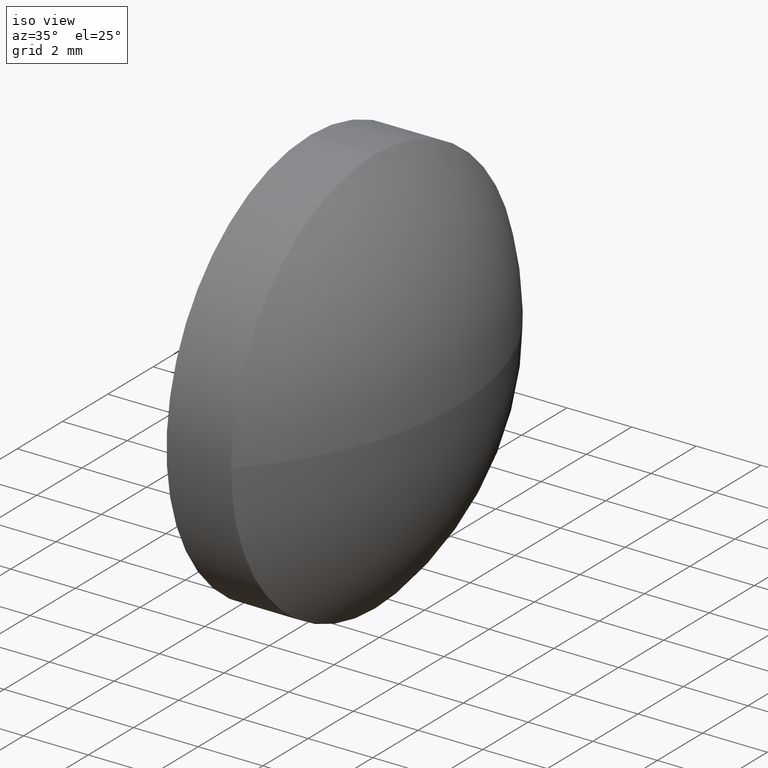
[diagram: clean part render]
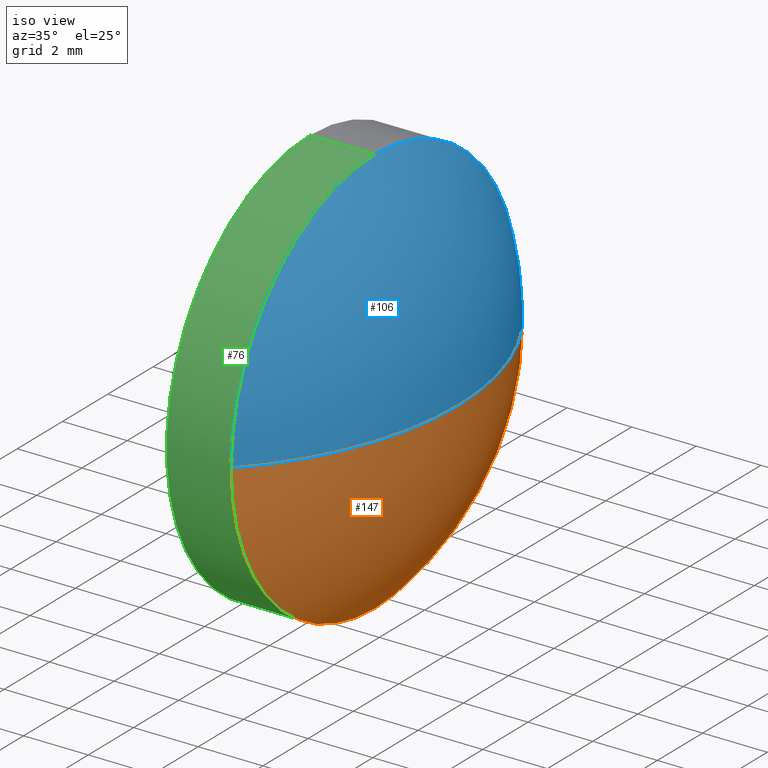
[diagram: same view with three faces highlighted in distinct colors, each labeled with its STEP entity id]
A machine part, iso view with three faces highlighted in distinct colors.
Their STEP definitions:

[orange] entity #147 — the highlighted spherical surface has radius 9.1555 mm.
#3 = CIRCLE ( 'NONE', #101, 9.155488281250011800 ) ;
#7 = DIRECTION ( 'NONE',  ( -1.000000000000000000, 0.0000000000000000000, 0.0000000000000000000 ) ) ;
#11 = DIRECTION ( 'NONE',  ( 0.0000000000000000000, -1.000000000000000000, -1.224646799147352200E-016 ) ) ;
#14 = EDGE_CURVE ( 'NONE', #174, #149, #123, .T. ) ;
#15 = CARTESIAN_POINT ( 'NONE',  ( 399.2579511298699800, 149.2174605340740600, 7.776507174585692200E-016 ) ) ;
#19 = CARTESIAN_POINT ( 'NONE',  ( 392.6624628486200100, 142.8674605340740700, 0.0000000000000000000 ) ) ;
#23 = CARTESIAN_POINT ( 'NONE',  ( 392.6624628486200100, 142.8674605340740700, 0.0000000000000000000 ) ) ;
#24 = AXIS2_PLACEMENT_3D ( 'NONE', #53, #52, #93 ) ;
#30 = CARTESIAN_POINT ( 'NONE',  ( 392.6624628486200100, 142.8674605340740700, 0.0000000000000000000 ) ) ;
#32 = ORIENTED_EDGE ( 'NONE', *, *, #161, .F. ) ;
#49 = CARTESIAN_POINT ( 'NONE',  ( 399.2579511298699800, 136.5174605340740500, 0.0000000000000000000 ) ) ;
#51 = VERTEX_POINT ( 'NONE', #49 ) ;
#52 = DIRECTION ( 'NONE',  ( -1.000000000000000000, -0.0000000000000000000, -0.0000000000000000000 ) ) ;
#53 = CARTESIAN_POINT ( 'NONE',  ( 399.2579511298699800, 142.8674605340740400, 0.0000000000000000000 ) ) ;
#54 = AXIS2_PLACEMENT_3D ( 'NONE', #30, #139, #153 ) ;
#56 = CARTESIAN_POINT ( 'NONE',  ( 401.8179511298699800, 142.8674605340740700, 0.0000000000000000000 ) ) ;
#65 = DIRECTION ( 'NONE',  ( -1.000000000000000000, -0.0000000000000000000, -0.0000000000000000000 ) ) ;
#71 = CIRCLE ( 'NONE', #97, 6.350000000000022700 ) ;
#72 = ORIENTED_EDGE ( 'NONE', *, *, #14, .F. ) ;
#81 = CARTESIAN_POINT ( 'NONE',  ( 399.2579511298699800, 142.8674605340740400, 0.0000000000000000000 ) ) ;
#83 = ORIENTED_EDGE ( 'NONE', *, *, #141, .F. ) ;
#88 = AXIS2_PLACEMENT_3D ( 'NONE', #23, #184, #11 ) ;
#93 = DIRECTION ( 'NONE',  ( 0.0000000000000000000, 0.0000000000000000000, 1.000000000000000000 ) ) ;
#97 = AXIS2_PLACEMENT_3D ( 'NONE', #81, #65, #127 ) ;
#101 = AXIS2_PLACEMENT_3D ( 'NONE', #19, #155, #7 ) ;
#112 = EDGE_LOOP ( 'NONE', ( #32, #133, #83, #72 ) ) ;
#117 = EDGE_CURVE ( 'NONE', #163, #51, #3, .T. ) ;
#118 = SPHERICAL_SURFACE ( 'NONE', #54, 9.155488281250006500 ) ;
#121 = FACE_OUTER_BOUND ( 'NONE', #112, .T. ) ;
#123 = CIRCLE ( 'NONE', #24, 6.350000000000022700 ) ;
#125 = CARTESIAN_POINT ( 'NONE',  ( 399.2579511298699800, 142.8674605340740400, -6.350000000000022700 ) ) ;
#127 = DIRECTION ( 'NONE',  ( 0.0000000000000000000, 0.0000000000000000000, 1.000000000000000000 ) ) ;
#133 = ORIENTED_EDGE ( 'NONE', *, *, #117, .T. ) ;
#139 = DIRECTION ( 'NONE',  ( 0.0000000000000000000, 0.0000000000000000000, 1.000000000000000000 ) ) ;
#141 = EDGE_CURVE ( 'NONE', #149, #51, #71, .T. ) ;
#143 = CIRCLE ( 'NONE', #88, 9.155488281250011800 ) ;
#147 = ADVANCED_FACE ( 'NONE', ( #121 ), #118, .T. ) ;
#149 = VERTEX_POINT ( 'NONE', #125 ) ;
#153 = DIRECTION ( 'NONE',  ( 0.0000000000000000000, -1.000000000000000000, 0.0000000000000000000 ) ) ;
#155 = DIRECTION ( 'NONE',  ( 0.0000000000000000000, 0.0000000000000000000, -1.000000000000000000 ) ) ;
#161 = EDGE_CURVE ( 'NONE', #163, #174, #143, .T. ) ;
#163 = VERTEX_POINT ( 'NONE', #56 ) ;
#174 = VERTEX_POINT ( 'NONE', #15 ) ;
#184 = DIRECTION ( 'NONE',  ( 0.0000000000000000000, -1.224646799147353200E-016, 1.000000000000000000 ) ) ;

[blue] entity #106 — the highlighted spherical surface has radius 9.1555 mm.
#3 = CIRCLE ( 'NONE', #101, 9.155488281250011800 ) ;
#6 = DIRECTION ( 'NONE',  ( 0.0000000000000000000, 0.0000000000000000000, 1.000000000000000000 ) ) ;
#7 = DIRECTION ( 'NONE',  ( -1.000000000000000000, 0.0000000000000000000, 0.0000000000000000000 ) ) ;
#11 = DIRECTION ( 'NONE',  ( 0.0000000000000000000, -1.000000000000000000, -1.224646799147352200E-016 ) ) ;
#13 = ORIENTED_EDGE ( 'NONE', *, *, #58, .F. ) ;
#15 = CARTESIAN_POINT ( 'NONE',  ( 399.2579511298699800, 149.2174605340740600, 7.776507174585692200E-016 ) ) ;
#17 = DIRECTION ( 'NONE',  ( -1.000000000000000000, -0.0000000000000000000, -0.0000000000000000000 ) ) ;
#19 = CARTESIAN_POINT ( 'NONE',  ( 392.6624628486200100, 142.8674605340740700, 0.0000000000000000000 ) ) ;
#23 = CARTESIAN_POINT ( 'NONE',  ( 392.6624628486200100, 142.8674605340740700, 0.0000000000000000000 ) ) ;
#28 = AXIS2_PLACEMENT_3D ( 'NONE', #63, #17, #140 ) ;
#34 = CARTESIAN_POINT ( 'NONE',  ( 399.2579511298699800, 142.8674605340740400, 6.350000000000022700 ) ) ;
#43 = CIRCLE ( 'NONE', #28, 6.350000000000022700 ) ;
#44 = AXIS2_PLACEMENT_3D ( 'NONE', #179, #95, #6 ) ;
#45 = VERTEX_POINT ( 'NONE', #34 ) ;
#47 = SPHERICAL_SURFACE ( 'NONE', #175, 9.155488281250006500 ) ;
#49 = CARTESIAN_POINT ( 'NONE',  ( 399.2579511298699800, 136.5174605340740500, 0.0000000000000000000 ) ) ;
#50 = CARTESIAN_POINT ( 'NONE',  ( 392.6624628486200100, 142.8674605340740700, 0.0000000000000000000 ) ) ;
#51 = VERTEX_POINT ( 'NONE', #49 ) ;
#55 = FACE_OUTER_BOUND ( 'NONE', #137, .T. ) ;
#56 = CARTESIAN_POINT ( 'NONE',  ( 401.8179511298699800, 142.8674605340740700, 0.0000000000000000000 ) ) ;
#58 = EDGE_CURVE ( 'NONE', #51, #45, #43, .T. ) ;
#63 = CARTESIAN_POINT ( 'NONE',  ( 399.2579511298699800, 142.8674605340740400, 0.0000000000000000000 ) ) ;
#85 = ORIENTED_EDGE ( 'NONE', *, *, #161, .T. ) ;
#88 = AXIS2_PLACEMENT_3D ( 'NONE', #23, #184, #11 ) ;
#95 = DIRECTION ( 'NONE',  ( -1.000000000000000000, -0.0000000000000000000, -0.0000000000000000000 ) ) ;
#98 = ORIENTED_EDGE ( 'NONE', *, *, #110, .F. ) ;
#101 = AXIS2_PLACEMENT_3D ( 'NONE', #19, #155, #7 ) ;
#102 = CIRCLE ( 'NONE', #44, 6.350000000000022700 ) ;
#106 = ADVANCED_FACE ( 'NONE', ( #55 ), #47, .T. ) ;
#110 = EDGE_CURVE ( 'NONE', #45, #174, #102, .T. ) ;
#117 = EDGE_CURVE ( 'NONE', #163, #51, #3, .T. ) ;
#137 = EDGE_LOOP ( 'NONE', ( #185, #85, #98, #13 ) ) ;
#140 = DIRECTION ( 'NONE',  ( 0.0000000000000000000, 0.0000000000000000000, 1.000000000000000000 ) ) ;
#143 = CIRCLE ( 'NONE', #88, 9.155488281250011800 ) ;
#154 = DIRECTION ( 'NONE',  ( 0.0000000000000000000, 0.0000000000000000000, 1.000000000000000000 ) ) ;
#155 = DIRECTION ( 'NONE',  ( 0.0000000000000000000, 0.0000000000000000000, -1.000000000000000000 ) ) ;
#161 = EDGE_CURVE ( 'NONE', #163, #174, #143, .T. ) ;
#163 = VERTEX_POINT ( 'NONE', #56 ) ;
#165 = DIRECTION ( 'NONE',  ( 0.0000000000000000000, -1.000000000000000000, 0.0000000000000000000 ) ) ;
#174 = VERTEX_POINT ( 'NONE', #15 ) ;
#175 = AXIS2_PLACEMENT_3D ( 'NONE', #50, #154, #165 ) ;
#179 = CARTESIAN_POINT ( 'NONE',  ( 399.2579511298699800, 142.8674605340740400, 0.0000000000000000000 ) ) ;
#184 = DIRECTION ( 'NONE',  ( 0.0000000000000000000, -1.224646799147353200E-016, 1.000000000000000000 ) ) ;
#185 = ORIENTED_EDGE ( 'NONE', *, *, #117, .F. ) ;

[green] entity #76 — the highlighted cylindrical surface (partial cylindrical patch) has radius 6.35 mm, axis along (-1, -0, -0).
#1 = AXIS2_PLACEMENT_3D ( 'NONE', #114, #92, #142 ) ;
#17 = DIRECTION ( 'NONE',  ( -1.000000000000000000, -0.0000000000000000000, -0.0000000000000000000 ) ) ;
#18 = DIRECTION ( 'NONE',  ( -1.000000000000000000, -0.0000000000000000000, -0.0000000000000000000 ) ) ;
#20 = EDGE_CURVE ( 'NONE', #45, #103, #57, .T. ) ;
#26 = ORIENTED_EDGE ( 'NONE', *, *, #141, .T. ) ;
#28 = AXIS2_PLACEMENT_3D ( 'NONE', #63, #17, #140 ) ;
#31 = FACE_OUTER_BOUND ( 'NONE', #162, .T. ) ;
#33 = DIRECTION ( 'NONE',  ( 0.0000000000000000000, 0.0000000000000000000, 1.000000000000000000 ) ) ;
#34 = CARTESIAN_POINT ( 'NONE',  ( 399.2579511298699800, 142.8674605340740400, 6.350000000000022700 ) ) ;
#37 = VECTOR ( 'NONE', #156, 1000.000000000000000 ) ;
#38 = CARTESIAN_POINT ( 'NONE',  ( 394.9299226398758300, 142.8674605340740400, 0.0000000000000000000 ) ) ;
#42 = ORIENTED_EDGE ( 'NONE', *, *, #75, .F. ) ;
#43 = CIRCLE ( 'NONE', #28, 6.350000000000022700 ) ;
#45 = VERTEX_POINT ( 'NONE', #34 ) ;
#48 = CARTESIAN_POINT ( 'NONE',  ( 397.2579511298699800, 142.8674605340740400, 6.350000000000022700 ) ) ;
#49 = CARTESIAN_POINT ( 'NONE',  ( 399.2579511298699800, 136.5174605340740500, 0.0000000000000000000 ) ) ;
#51 = VERTEX_POINT ( 'NONE', #49 ) ;
#57 = LINE ( 'NONE', #96, #152 ) ;
#58 = EDGE_CURVE ( 'NONE', #51, #45, #43, .T. ) ;
#60 = CYLINDRICAL_SURFACE ( 'NONE', #105, 6.350000000000022700 ) ;
#62 = CARTESIAN_POINT ( 'NONE',  ( 394.9299226398758300, 142.8674605340740400, -6.350000000000022700 ) ) ;
#63 = CARTESIAN_POINT ( 'NONE',  ( 399.2579511298699800, 142.8674605340740400, 0.0000000000000000000 ) ) ;
#65 = DIRECTION ( 'NONE',  ( -1.000000000000000000, -0.0000000000000000000, -0.0000000000000000000 ) ) ;
#71 = CIRCLE ( 'NONE', #97, 6.350000000000022700 ) ;
#75 = EDGE_CURVE ( 'NONE', #89, #103, #134, .T. ) ;
#76 = ADVANCED_FACE ( 'NONE', ( #31 ), #60, .T. ) ;
#80 = DIRECTION ( 'NONE',  ( -1.000000000000000000, -0.0000000000000000000, -0.0000000000000000000 ) ) ;
#81 = CARTESIAN_POINT ( 'NONE',  ( 399.2579511298699800, 142.8674605340740400, 0.0000000000000000000 ) ) ;
#89 = VERTEX_POINT ( 'NONE', #164 ) ;
#92 = DIRECTION ( 'NONE',  ( -1.000000000000000000, -0.0000000000000000000, -0.0000000000000000000 ) ) ;
#96 = CARTESIAN_POINT ( 'NONE',  ( 394.9299226398758300, 142.8674605340740400, 6.350000000000022700 ) ) ;
#97 = AXIS2_PLACEMENT_3D ( 'NONE', #81, #65, #127 ) ;
#103 = VERTEX_POINT ( 'NONE', #48 ) ;
#105 = AXIS2_PLACEMENT_3D ( 'NONE', #38, #80, #33 ) ;
#114 = CARTESIAN_POINT ( 'NONE',  ( 397.2579511298699800, 142.8674605340740400, 0.0000000000000000000 ) ) ;
#122 = ORIENTED_EDGE ( 'NONE', *, *, #20, .T. ) ;
#125 = CARTESIAN_POINT ( 'NONE',  ( 399.2579511298699800, 142.8674605340740400, -6.350000000000022700 ) ) ;
#127 = DIRECTION ( 'NONE',  ( 0.0000000000000000000, 0.0000000000000000000, 1.000000000000000000 ) ) ;
#134 = CIRCLE ( 'NONE', #1, 6.350000000000022700 ) ;
#138 = ORIENTED_EDGE ( 'NONE', *, *, #58, .T. ) ;
#140 = DIRECTION ( 'NONE',  ( 0.0000000000000000000, 0.0000000000000000000, 1.000000000000000000 ) ) ;
#141 = EDGE_CURVE ( 'NONE', #149, #51, #71, .T. ) ;
#142 = DIRECTION ( 'NONE',  ( 0.0000000000000000000, 0.0000000000000000000, 1.000000000000000000 ) ) ;
#149 = VERTEX_POINT ( 'NONE', #125 ) ;
#150 = EDGE_CURVE ( 'NONE', #149, #89, #177, .T. ) ;
#152 = VECTOR ( 'NONE', #18, 1000.000000000000000 ) ;
#156 = DIRECTION ( 'NONE',  ( -1.000000000000000000, -0.0000000000000000000, -0.0000000000000000000 ) ) ;
#162 = EDGE_LOOP ( 'NONE', ( #178, #26, #138, #122, #42 ) ) ;
#164 = CARTESIAN_POINT ( 'NONE',  ( 397.2579511298699800, 142.8674605340740400, -6.350000000000022700 ) ) ;
#177 = LINE ( 'NONE', #62, #37 ) ;
#178 = ORIENTED_EDGE ( 'NONE', *, *, #150, .F. ) ;